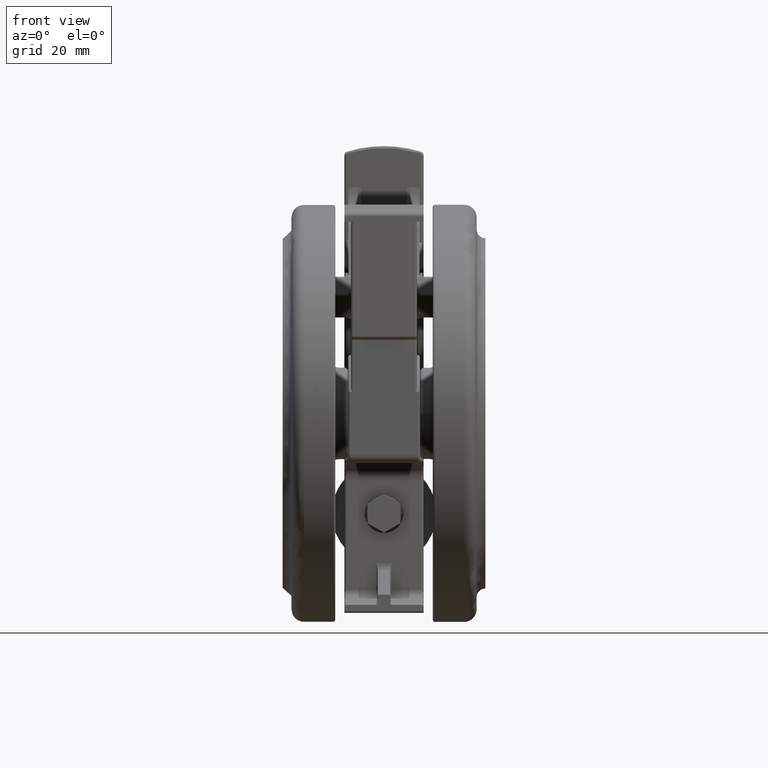
[diagram: clean part render]
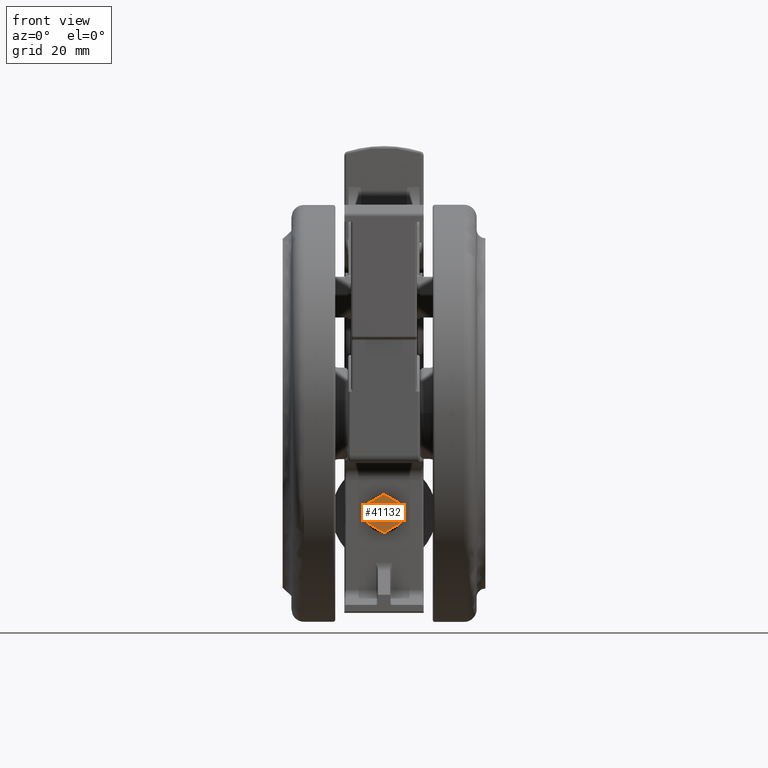
[diagram: same view with one face highlighted and labeled with its STEP entity id]
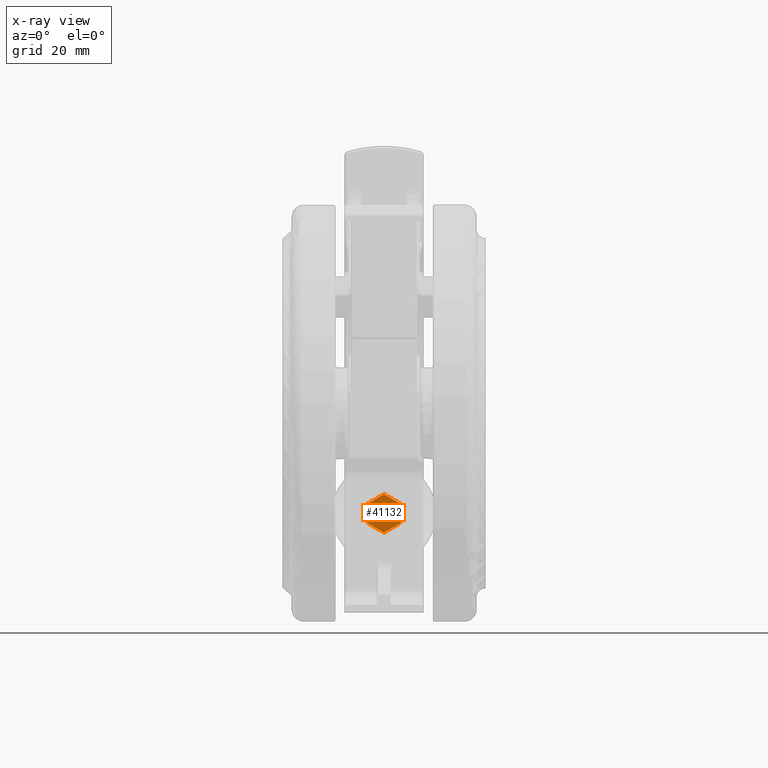
[diagram: x-ray of the same camera — body ghosted, the highlighted face saturated]
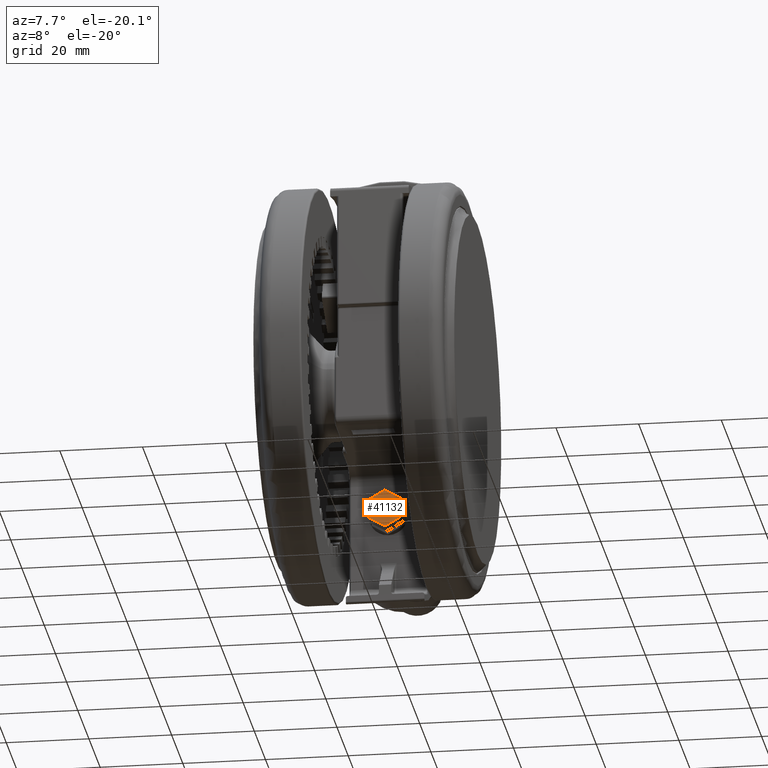
[diagram: same view with one face highlighted and labeled with its STEP entity id]
A machine part, front view. The second image highlights one B-rep face of the part: STEP entity #41132.
The next image is the same camera in x-ray: the body ghosted, the highlighted face saturated — about 0% of this face is hidden behind the body in this view.
A second angle (auxiliary view) of the same face is appended — the face is thin or edge-on in the first view.
In plain terms, the highlighted planar face has unit normal (-0, -1, -0).
Its self-contained STEP definition (entity closure, byte-faithful):
#605 = VECTOR ( 'NONE', #6142, 1000.000000000000000 ) ;
#1211 = CARTESIAN_POINT ( 'NONE',  ( -28.61880215351701300, -13.69999999999999000, -24.29999999999995100 ) ) ;
#1442 = CARTESIAN_POINT ( 'NONE',  ( -26.30940107675850800, -13.69999999999999000, -20.29999999999995100 ) ) ;
#2520 = EDGE_CURVE ( 'NONE', #33098, #15547, #10668, .T. ) ;
#5273 = EDGE_CURVE ( 'NONE', #8066, #33098, #38712, .T. ) ;
#5622 = VECTOR ( 'NONE', #24030, 1000.000000000000000 ) ;
#6142 = DIRECTION ( 'NONE',  ( -1.000000000000000000, -2.360897160001558300E-016, -1.012011884991536800E-016 ) ) ;
#6734 = CARTESIAN_POINT ( 'NONE',  ( -19.38119784648299400, -13.69999999999999000, -24.29999999999995100 ) ) ;
#6909 = VECTOR ( 'NONE', #34477, 1000.000000000000100 ) ;
#8066 = VERTEX_POINT ( 'NONE', #6734 ) ;
#8176 = CARTESIAN_POINT ( 'NONE',  ( -28.61880215351701300, -13.69999999999999000, -24.29999999999995100 ) ) ;
#8921 = DIRECTION ( 'NONE',  ( -1.012011884991536800E-016, 1.779100357716780200E-016, 1.000000000000000000 ) ) ;
#9494 = EDGE_CURVE ( 'NONE', #16913, #31696, #44579, .T. ) ;
#9714 = CARTESIAN_POINT ( 'NONE',  ( -21.69059892324149500, -13.69999999999999000, -28.29999999999995100 ) ) ;
#10668 = LINE ( 'NONE', #21133, #605 ) ;
#10998 = ORIENTED_EDGE ( 'NONE', *, *, #5273, .T. ) ;
#12609 = DIRECTION ( 'NONE',  ( 0.4999999999999998300, 2.721194685665493800E-016, 0.8660254037844388200 ) ) ;
#14684 = CARTESIAN_POINT ( 'NONE',  ( -26.30940107675850800, -13.69999999999999000, -28.29999999999995100 ) ) ;
#15547 = VERTEX_POINT ( 'NONE', #37194 ) ;
#16913 = VERTEX_POINT ( 'NONE', #26985 ) ;
#16958 = LINE ( 'NONE', #1211, #45848 ) ;
#20570 = ORIENTED_EDGE ( 'NONE', *, *, #9494, .T. ) ;
#20736 = EDGE_LOOP ( 'NONE', ( #10998, #35582, #44405, #22724, #20570, #37237 ) ) ;
#21133 = CARTESIAN_POINT ( 'NONE',  ( -21.69059892324149500, -13.69999999999999000, -28.29999999999995100 ) ) ;
#22724 = ORIENTED_EDGE ( 'NONE', *, *, #29959, .T. ) ;
#24030 = DIRECTION ( 'NONE',  ( 1.000000000000000000, 2.360897160001558300E-016, 1.012011884991536800E-016 ) ) ;
#26052 = DIRECTION ( 'NONE',  ( -0.4999999999999999400, 3.602975256639351500E-017, 0.8660254037844386000 ) ) ;
#26985 = CARTESIAN_POINT ( 'NONE',  ( -26.30940107675850800, -13.69999999999999000, -20.29999999999995100 ) ) ;
#29959 = EDGE_CURVE ( 'NONE', #45526, #16913, #16958, .T. ) ;
#30444 = EDGE_CURVE ( 'NONE', #31696, #8066, #45803, .T. ) ;
#30696 = CARTESIAN_POINT ( 'NONE',  ( -21.69059892324149900, -13.69999999999999000, -20.29999999999995100 ) ) ;
#31501 = DIRECTION ( 'NONE',  ( -2.360897160001558300E-016, 1.000000000000000000, -1.779100357716780400E-016 ) ) ;
#31696 = VERTEX_POINT ( 'NONE', #39008 ) ;
#32294 = LINE ( 'NONE', #14684, #41180 ) ;
#33098 = VERTEX_POINT ( 'NONE', #9714 ) ;
#33706 = CARTESIAN_POINT ( 'NONE',  ( -19.38119784648299400, -13.69999999999999000, -24.29999999999995100 ) ) ;
#34477 = DIRECTION ( 'NONE',  ( 0.4999999999999999400, -3.602975256639351500E-017, -0.8660254037844386000 ) ) ;
#35145 = PLANE ( 'NONE',  #44077 ) ;
#35582 = ORIENTED_EDGE ( 'NONE', *, *, #2520, .T. ) ;
#37194 = CARTESIAN_POINT ( 'NONE',  ( -26.30940107675850800, -13.69999999999999000, -28.29999999999995100 ) ) ;
#37237 = ORIENTED_EDGE ( 'NONE', *, *, #30444, .T. ) ;
#37377 = FACE_OUTER_BOUND ( 'NONE', #20736, .T. ) ;
#37539 = VECTOR ( 'NONE', #37545, 999.9999999999998900 ) ;
#37545 = DIRECTION ( 'NONE',  ( -0.4999999999999998300, -2.721194685665493800E-016, -0.8660254037844388200 ) ) ;
#38712 = LINE ( 'NONE', #33706, #37539 ) ;
#39008 = CARTESIAN_POINT ( 'NONE',  ( -21.69059892324149900, -13.69999999999999000, -20.29999999999995100 ) ) ;
#41132 = ADVANCED_FACE ( 'NONE', ( #37377 ), #35145, .T. ) ;
#41180 = VECTOR ( 'NONE', #26052, 1000.000000000000100 ) ;
#42721 = CARTESIAN_POINT ( 'NONE',  ( -24.00000000000000400, -13.69999999999999000, -24.29999999999995100 ) ) ;
#42795 = EDGE_CURVE ( 'NONE', #15547, #45526, #32294, .T. ) ;
#44077 = AXIS2_PLACEMENT_3D ( 'NONE', #42721, #31501, #8921 ) ;
#44405 = ORIENTED_EDGE ( 'NONE', *, *, #42795, .T. ) ;
#44579 = LINE ( 'NONE', #1442, #5622 ) ;
#45526 = VERTEX_POINT ( 'NONE', #8176 ) ;
#45803 = LINE ( 'NONE', #30696, #6909 ) ;
#45848 = VECTOR ( 'NONE', #12609, 999.9999999999998900 ) ;